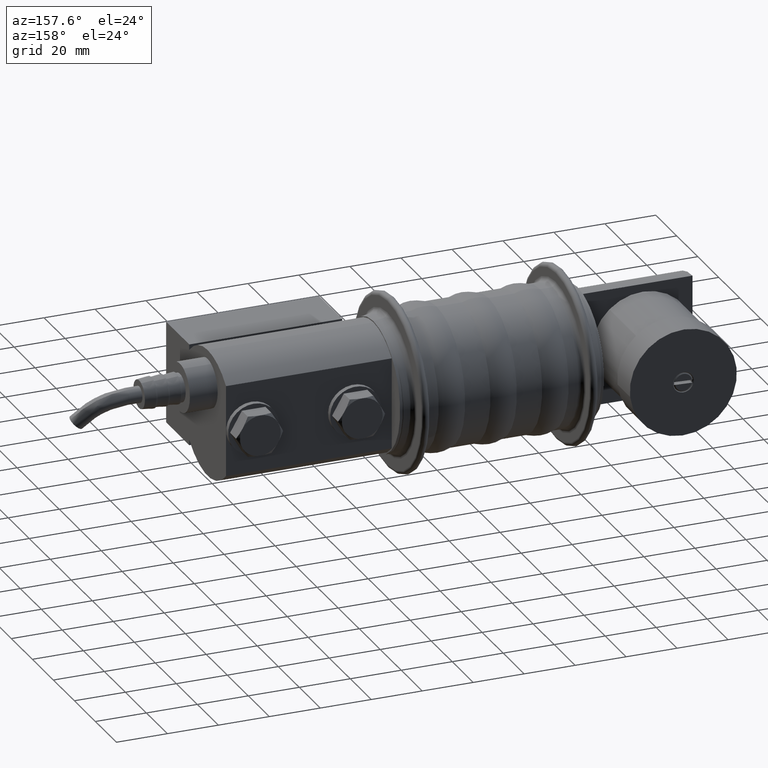
[diagram: clean part render]
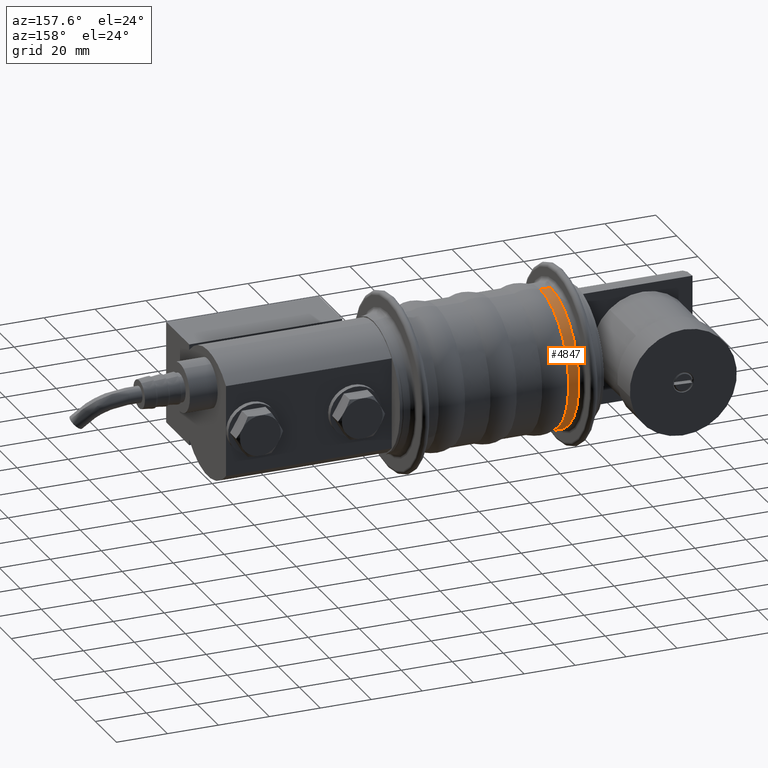
[diagram: same view with one face highlighted and labeled with its STEP entity id]
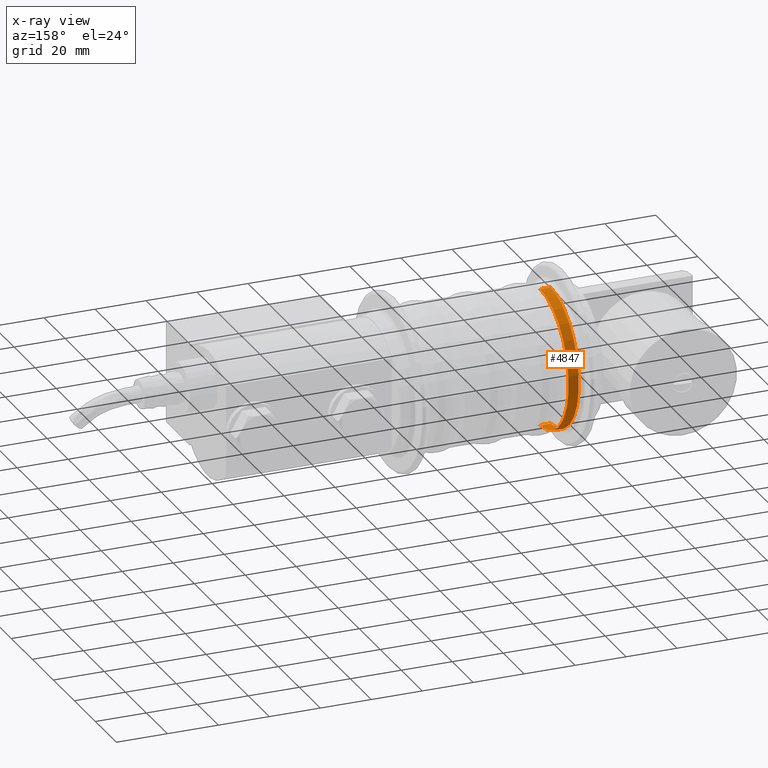
[diagram: x-ray of the same camera — body ghosted, the highlighted face saturated]
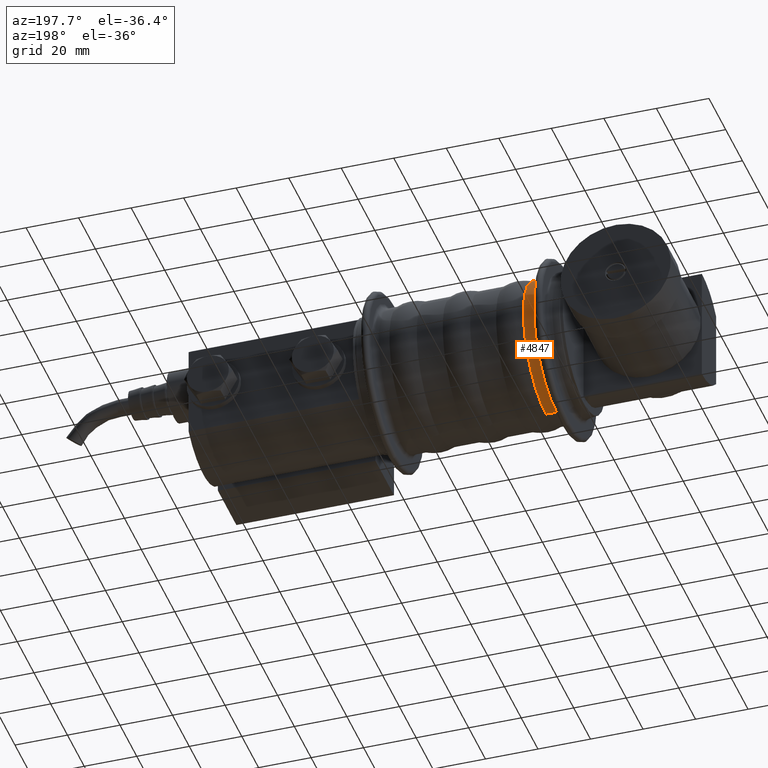
[diagram: same view with one face highlighted and labeled with its STEP entity id]
A machine part, auxiliary view. The second image highlights one B-rep face of the part: STEP entity #4847.
The next image is the same camera in x-ray: the body ghosted, the highlighted face saturated — about 0% of this face is hidden behind the body in this view.
A second angle (auxiliary view) of the same face is appended — the face is thin or edge-on in the first view.
In plain terms, the highlighted cylindrical surface (partial cylindrical patch) has radius 27 mm, axis along (-1, 0, 0).
Its self-contained STEP definition (entity closure, byte-faithful):
#228 = CARTESIAN_POINT ( 'NONE',  ( 69.50000000000000000, 3.429011037612588900E-015, 26.99999999999999600 ) ) ;
#647 = DIRECTION ( 'NONE',  ( 0.0000000000000000000, 0.0000000000000000000, -1.000000000000000000 ) ) ;
#712 = ORIENTED_EDGE ( 'NONE', *, *, #1044, .T. ) ;
#728 = VERTEX_POINT ( 'NONE', #2224 ) ;
#1044 = EDGE_CURVE ( 'NONE', #2818, #4492, #2890, .T. ) ;
#1335 = VECTOR ( 'NONE', #5388, 1000.000000000000000 ) ;
#1582 = FACE_OUTER_BOUND ( 'NONE', #6269, .T. ) ;
#2087 = AXIS2_PLACEMENT_3D ( 'NONE', #2266, #5482, #2288 ) ;
#2224 = CARTESIAN_POINT ( 'NONE',  ( 69.50000000000000000, 0.0000000000000000000, -26.99999999999999600 ) ) ;
#2265 = CIRCLE ( 'NONE', #6178, 26.99999999999999600 ) ;
#2266 = CARTESIAN_POINT ( 'NONE',  ( 80.00000000000000000, 0.0000000000000000000, 0.0000000000000000000 ) ) ;
#2288 = DIRECTION ( 'NONE',  ( 0.0000000000000000000, 0.0000000000000000000, -1.000000000000000000 ) ) ;
#2672 = AXIS2_PLACEMENT_3D ( 'NONE', #6504, #4882, #647 ) ;
#2818 = VERTEX_POINT ( 'NONE', #5701 ) ;
#2890 = CIRCLE ( 'NONE', #2672, 27.00000000000000000 ) ;
#3224 = VERTEX_POINT ( 'NONE', #228 ) ;
#3404 = CARTESIAN_POINT ( 'NONE',  ( 69.50000000000000000, 0.0000000000000000000, 0.0000000000000000000 ) ) ;
#3650 = CARTESIAN_POINT ( 'NONE',  ( 65.50000000000000000, 3.306546357697854100E-015, 27.00000000000000400 ) ) ;
#3724 = ORIENTED_EDGE ( 'NONE', *, *, #4897, .F. ) ;
#4061 = CARTESIAN_POINT ( 'NONE',  ( 80.00000000000000000, 0.0000000000000000000, -26.99999999999999600 ) ) ;
#4115 = DIRECTION ( 'NONE',  ( 1.000000000000000000, 0.0000000000000000000, 0.0000000000000000000 ) ) ;
#4227 = LINE ( 'NONE', #4061, #4572 ) ;
#4271 = CARTESIAN_POINT ( 'NONE',  ( 80.00000000000000000, 3.306546357697853300E-015, 26.99999999999999600 ) ) ;
#4492 = VERTEX_POINT ( 'NONE', #3650 ) ;
#4572 = VECTOR ( 'NONE', #4115, 1000.000000000000000 ) ;
#4666 = EDGE_CURVE ( 'NONE', #4492, #3224, #4677, .T. ) ;
#4677 = LINE ( 'NONE', #4271, #1335 ) ;
#4847 = ADVANCED_FACE ( 'NONE', ( #1582 ), #6018, .T. ) ;
#4882 = DIRECTION ( 'NONE',  ( 1.000000000000000000, 0.0000000000000000000, 0.0000000000000000000 ) ) ;
#4897 = EDGE_CURVE ( 'NONE', #728, #3224, #2265, .T. ) ;
#4989 = DIRECTION ( 'NONE',  ( 1.000000000000000000, 0.0000000000000000000, 0.0000000000000000000 ) ) ;
#5033 = ORIENTED_EDGE ( 'NONE', *, *, #6362, .F. ) ;
#5137 = ORIENTED_EDGE ( 'NONE', *, *, #4666, .T. ) ;
#5388 = DIRECTION ( 'NONE',  ( 1.000000000000000000, 0.0000000000000000000, 0.0000000000000000000 ) ) ;
#5482 = DIRECTION ( 'NONE',  ( 1.000000000000000000, 0.0000000000000000000, 0.0000000000000000000 ) ) ;
#5701 = CARTESIAN_POINT ( 'NONE',  ( 65.50000000000000000, 0.0000000000000000000, -27.00000000000000000 ) ) ;
#6018 = CYLINDRICAL_SURFACE ( 'NONE', #2087, 26.99999999999999600 ) ;
#6178 = AXIS2_PLACEMENT_3D ( 'NONE', #3404, #4989, #6635 ) ;
#6269 = EDGE_LOOP ( 'NONE', ( #712, #5137, #3724, #5033 ) ) ;
#6362 = EDGE_CURVE ( 'NONE', #2818, #728, #4227, .T. ) ;
#6504 = CARTESIAN_POINT ( 'NONE',  ( 65.50000000000000000, 0.0000000000000000000, 0.0000000000000000000 ) ) ;
#6635 = DIRECTION ( 'NONE',  ( 0.0000000000000000000, 0.0000000000000000000, -1.000000000000000000 ) ) ;